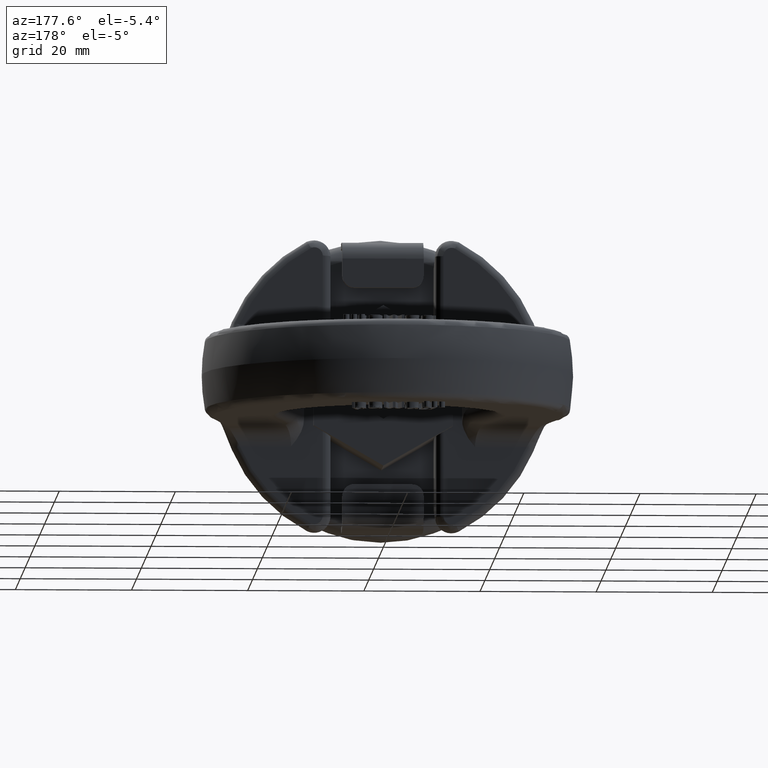
[diagram: clean part render]
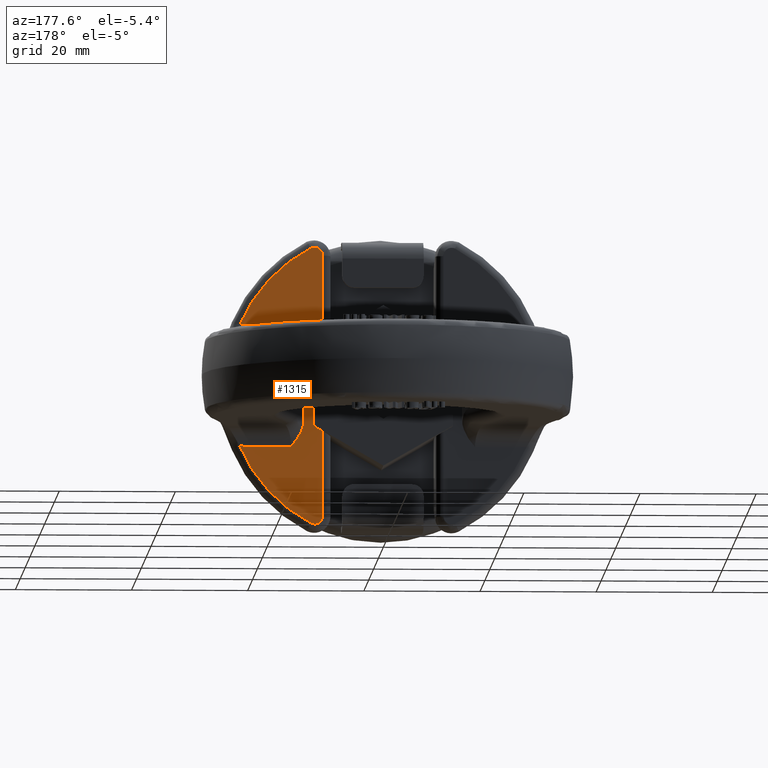
[diagram: same view with one face highlighted and labeled with its STEP entity id]
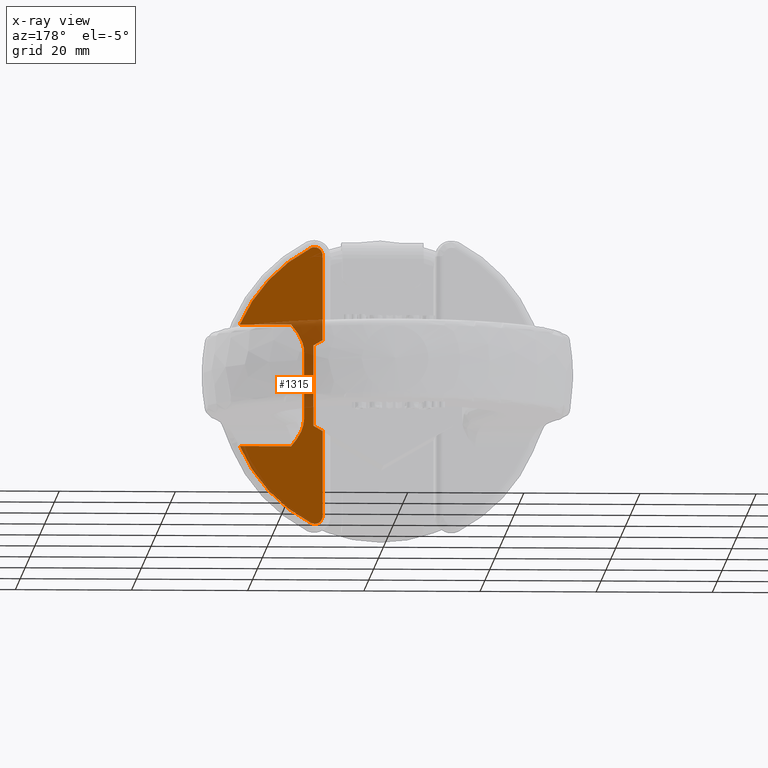
[diagram: x-ray of the same camera — body ghosted, the highlighted face saturated]
A machine part, auxiliary view. The second image highlights one B-rep face of the part: STEP entity #1315.
The next image is the same camera in x-ray: the body ghosted, the highlighted face saturated — about 13% of this face is hidden behind the body in this view.
In plain terms, the highlighted planar face has unit normal (0, 1, 0).
Its self-contained STEP definition (entity closure, byte-faithful):
#1095=FACE_OUTER_BOUND('',#1827,.T.);
#1315=ADVANCED_FACE('',(#1095),#1554,.T.);
#1554=PLANE('',#5133);
#1674=CIRCLE('',#5131,26.8117324217932);
#1675=CIRCLE('',#5132,26.8117324217932);
#1827=EDGE_LOOP('',(#2796,#2797,#2798,#2799,#2800,#2801,#2802,#2803,#2804,
#2805,#2806,#2807,#2808,#2809));
#2141=LINE('',#6673,#2421);
#2142=LINE('',#6676,#2422);
#2143=LINE('',#6700,#2423);
#2144=LINE('',#6707,#2424);
#2145=LINE('',#6714,#2425);
#2146=LINE('',#6741,#2426);
#2147=LINE('',#6743,#2427);
#2148=LINE('',#6745,#2428);
#2421=VECTOR('',#5467,1.);
#2422=VECTOR('',#5468,1.);
#2423=VECTOR('',#5471,1.);
#2424=VECTOR('',#5472,1.);
#2425=VECTOR('',#5473,1.);
#2426=VECTOR('',#5476,1.);
#2427=VECTOR('',#5477,1.);
#2428=VECTOR('',#5478,1.);
#2796=ORIENTED_EDGE('',*,*,#4358,.T.);
#2797=ORIENTED_EDGE('',*,*,#4359,.T.);
#2798=ORIENTED_EDGE('',*,*,#4360,.T.);
#2799=ORIENTED_EDGE('',*,*,#4361,.T.);
#2800=ORIENTED_EDGE('',*,*,#4362,.T.);
#2801=ORIENTED_EDGE('',*,*,#4363,.T.);
#2802=ORIENTED_EDGE('',*,*,#4364,.F.);
#2803=ORIENTED_EDGE('',*,*,#4365,.T.);
#2804=ORIENTED_EDGE('',*,*,#4366,.T.);
#2805=ORIENTED_EDGE('',*,*,#4367,.T.);
#2806=ORIENTED_EDGE('',*,*,#4368,.T.);
#2807=ORIENTED_EDGE('',*,*,#4369,.T.);
#2808=ORIENTED_EDGE('',*,*,#4370,.T.);
#2809=ORIENTED_EDGE('',*,*,#4371,.T.);
#3968=VERTEX_POINT('',#6674);
#3969=VERTEX_POINT('',#6675);
#3970=VERTEX_POINT('',#6677);
#3971=VERTEX_POINT('',#6697);
#3972=VERTEX_POINT('',#6699);
#3973=VERTEX_POINT('',#6701);
#3974=VERTEX_POINT('',#6706);
#3975=VERTEX_POINT('',#6708);
#3976=VERTEX_POINT('',#6713);
#3977=VERTEX_POINT('',#6715);
#3978=VERTEX_POINT('',#6717);
#3979=VERTEX_POINT('',#6740);
#3980=VERTEX_POINT('',#6742);
#3981=VERTEX_POINT('',#6744);
#4358=EDGE_CURVE('',#3968,#3969,#2141,.T.);
#4359=EDGE_CURVE('',#3969,#3970,#2142,.T.);
#4360=EDGE_CURVE('',#3970,#3971,#4883,.T.);
#4361=EDGE_CURVE('',#3971,#3972,#1674,.T.);
#4362=EDGE_CURVE('',#3972,#3973,#2143,.T.);
#4363=EDGE_CURVE('',#3973,#3974,#4884,.T.);
#4364=EDGE_CURVE('',#3975,#3974,#2144,.T.);
#4365=EDGE_CURVE('',#3975,#3976,#4885,.T.);
#4366=EDGE_CURVE('',#3976,#3977,#2145,.T.);
#4367=EDGE_CURVE('',#3977,#3978,#1675,.T.);
#4368=EDGE_CURVE('',#3978,#3979,#4886,.T.);
#4369=EDGE_CURVE('',#3979,#3980,#2146,.T.);
#4370=EDGE_CURVE('',#3980,#3981,#2147,.T.);
#4371=EDGE_CURVE('',#3981,#3968,#2148,.T.);
#4883=B_SPLINE_CURVE_WITH_KNOTS('',3,(#6678,#6679,#6680,#6681,#6682,#6683,
#6684,#6685,#6686,#6687,#6688,#6689,#6690,#6691,#6692,#6693,#6694,#6695,
#6696),.UNSPECIFIED.,.F.,.F.,(4,3,3,3,3,3,4),(0.,0.172358342612521,0.344870071870569,
0.51483433379764,0.679727238197603,0.840103461121384,1.),.UNSPECIFIED.);
#4884=B_SPLINE_CURVE_WITH_KNOTS('',3,(#6702,#6703,#6704,#6705),
 .UNSPECIFIED.,.F.,.F.,(4,4),(0.,1.),.UNSPECIFIED.);
#4885=B_SPLINE_CURVE_WITH_KNOTS('',3,(#6709,#6710,#6711,#6712),
 .UNSPECIFIED.,.F.,.F.,(4,4),(0.,1.),.UNSPECIFIED.);
#4886=B_SPLINE_CURVE_WITH_KNOTS('',3,(#6718,#6719,#6720,#6721,#6722,#6723,
#6724,#6725,#6726,#6727,#6728,#6729,#6730,#6731,#6732,#6733,#6734,#6735,
#6736,#6737,#6738,#6739),.UNSPECIFIED.,.F.,.F.,(4,3,3,3,3,3,3,4),(0.,0.15936178506952,
0.318805810577795,0.477289596476936,0.637394602642785,0.801556850937675,
0.970618658348906,1.),.UNSPECIFIED.);
#5131=AXIS2_PLACEMENT_3D('',#6698,#5469,#5470);
#5132=AXIS2_PLACEMENT_3D('',#6716,#5474,#5475);
#5133=AXIS2_PLACEMENT_3D('',#6746,#5479,#5480);
#5467=DIRECTION('',(-0.866025403784442,0.,0.499999999999995));
#5468=DIRECTION('',(0.,0.,1.));
#5469=DIRECTION('',(0.,1.,0.));
#5470=DIRECTION('',(0.,0.,1.));
#5471=DIRECTION('',(-1.,0.,0.));
#5472=DIRECTION('',(0.,0.,1.));
#5473=DIRECTION('',(1.,0.,2.34291072916505E-15));
#5474=DIRECTION('',(0.,1.,0.));
#5475=DIRECTION('',(2.34291072916505E-15,0.,-1.));
#5476=DIRECTION('',(-2.34291072916505E-15,0.,1.));
#5477=DIRECTION('',(0.86602540378444,0.,0.499999999999997));
#5478=DIRECTION('',(0.,0.,1.));
#5479=DIRECTION('',(0.,1.,0.));
#5480=DIRECTION('',(0.,0.,1.));
#6673=CARTESIAN_POINT('',(-2.49204710660602,19.,15.2951905283831));
#6674=CARTESIAN_POINT('',(12.,19.,6.92820323027553));
#6675=CARTESIAN_POINT('',(10.4,19.,7.85196366097892));
#6676=CARTESIAN_POINT('',(10.4,19.,35.2));
#6677=CARTESIAN_POINT('',(10.4,19.,22.4673111050459));
#6678=CARTESIAN_POINT('',(10.4,19.,22.4673111050459));
#6679=CARTESIAN_POINT('',(10.3999999999998,19.,22.6326888205107));
#6680=CARTESIAN_POINT('',(10.4282983755057,19.,22.8003547985772));
#6681=CARTESIAN_POINT('',(10.4828418644205,19.,22.9564790971005));
#6682=CARTESIAN_POINT('',(10.5374123131547,19.,23.1126805649243));
#6683=CARTESIAN_POINT('',(10.6198524785853,19.,23.261707653572));
#6684=CARTESIAN_POINT('',(10.7237564789008,19.,23.3904740744425));
#6685=CARTESIAN_POINT('',(10.8261096407842,19.,23.5173185682104));
#6686=CARTESIAN_POINT('',(10.9522962478287,19.,23.628096876692));
#6687=CARTESIAN_POINT('',(11.0917729000537,19.,23.7124293071733));
#6688=CARTESIAN_POINT('',(11.2271368785,19.,23.7942750721804));
#6689=CARTESIAN_POINT('',(11.3789176215255,19.,23.8535142138243));
#6690=CARTESIAN_POINT('',(11.5340448745973,19.,23.8844604779732));
#6691=CARTESIAN_POINT('',(11.6850117596864,19.,23.9145767922326));
#6692=CARTESIAN_POINT('',(11.8433743842983,19.,23.9187446569583));
#6693=CARTESIAN_POINT('',(11.9957106254705,19.,23.8965711952622));
#6694=CARTESIAN_POINT('',(12.1476286982741,19.,23.8744586005025));
#6695=CARTESIAN_POINT('',(12.2977539666928,19.,23.8255705262276));
#6696=CARTESIAN_POINT('',(12.433767072811,19.,23.7543771090076));
#6697=CARTESIAN_POINT('',(12.4337670728109,19.,23.754377109007));
#6698=CARTESIAN_POINT('',(-1.26850508220434E-13,19.,4.23289548145384E-14));
#6699=CARTESIAN_POINT('',(24.6702046091602,19.,10.5));
#6700=CARTESIAN_POINT('',(9.,19.,10.5));
#6701=CARTESIAN_POINT('',(15.8378374688963,19.,10.5));
#6702=CARTESIAN_POINT('',(15.8378374688963,19.,10.5));
#6703=CARTESIAN_POINT('',(14.6425022700967,19.,9.16281866808268));
#6704=CARTESIAN_POINT('',(13.591977707196,19.,7.54366918195637));
#6705=CARTESIAN_POINT('',(13.591977707196,19.,5.7232785718454));
#6706=CARTESIAN_POINT('',(13.591977707196,19.,5.7232785718454));
#6707=CARTESIAN_POINT('',(13.591977707196,19.,35.2));
#6708=CARTESIAN_POINT('',(13.5919777071961,19.,-5.72327857184538));
#6709=CARTESIAN_POINT('',(13.5919777071961,19.,-5.72327857184538));
#6710=CARTESIAN_POINT('',(13.5919777071961,19.,-7.54366918195635));
#6711=CARTESIAN_POINT('',(14.6425022700882,19.,-9.16281866809027));
#6712=CARTESIAN_POINT('',(15.8378374688964,19.,-10.5));
#6713=CARTESIAN_POINT('',(15.8378374688964,19.,-10.5));
#6714=CARTESIAN_POINT('',(13.5919777071961,19.,-10.5));
#6715=CARTESIAN_POINT('',(24.6702046091604,19.,-10.5));
#6716=CARTESIAN_POINT('',(1.26850508220434E-13,19.,-4.23289548145381E-14));
#6717=CARTESIAN_POINT('',(12.4337670728081,19.,-23.7543771090086));
#6718=CARTESIAN_POINT('',(12.4337670728081,19.,-23.7543771090086));
#6719=CARTESIAN_POINT('',(12.2983075382122,19.,-23.8252807699726));
#6720=CARTESIAN_POINT('',(12.1488609871687,19.,-23.8740619312744));
#6721=CARTESIAN_POINT('',(11.9975921486855,19.,-23.8962959852228));
#6722=CARTESIAN_POINT('',(11.846271684091,19.,-23.9185376273682));
#6723=CARTESIAN_POINT('',(11.6889804312607,19.,-23.9147949631215));
#6724=CARTESIAN_POINT('',(11.5388822217841,19.,-23.8854163797261));
#6725=CARTESIAN_POINT('',(11.3896317326204,19.,-23.8562037198417));
#6726=CARTESIAN_POINT('',(11.2434394912662,19.,-23.8008953503555));
#6727=CARTESIAN_POINT('',(11.1119848848923,19.,-23.7244180695708));
#6728=CARTESIAN_POINT('',(10.9791608687827,19.,-23.6471440975498));
#6729=CARTESIAN_POINT('',(10.8578143215359,19.,-23.5462546112349));
#6730=CARTESIAN_POINT('',(10.7570488780858,19.,-23.4302381838909));
#6731=CARTESIAN_POINT('',(10.6537449728703,19.,-23.311299095217));
#6732=CARTESIAN_POINT('',(10.5692952106787,19.,-23.1733441101992));
#6733=CARTESIAN_POINT('',(10.5097298135585,19.,-23.0275011566044));
#6734=CARTESIAN_POINT('',(10.4484117734883,19.,-22.877366942701));
#6735=CARTESIAN_POINT('',(10.4117993356472,19.,-22.7148572869028));
#6736=CARTESIAN_POINT('',(10.4024662522725,19.,-22.5529527539918));
#6737=CARTESIAN_POINT('',(10.4008226773019,19.,-22.5244410363494));
#6738=CARTESIAN_POINT('',(10.4000000000001,19.,-22.4958701558285));
#6739=CARTESIAN_POINT('',(10.4000000000001,19.,-22.4673111050459));
#6740=CARTESIAN_POINT('',(10.4000000000001,19.,-22.4673111050459));
#6741=CARTESIAN_POINT('',(10.4000000000001,19.,-35.1999999999999));
#6742=CARTESIAN_POINT('',(10.4,19.,-7.85196366097889));
#6743=CARTESIAN_POINT('',(0.951936173791067,19.,-13.3068058543614));
#6744=CARTESIAN_POINT('',(12.,19.,-6.9282032302755));
#6745=CARTESIAN_POINT('',(12.,19.,35.2));
#6746=CARTESIAN_POINT('',(9.,19.,35.2));